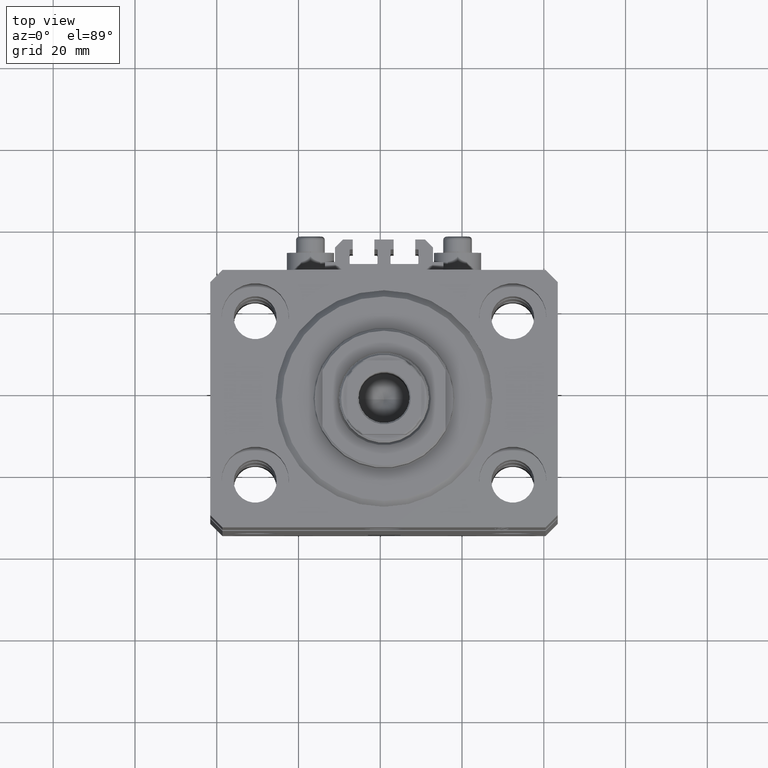
[diagram: clean part render]
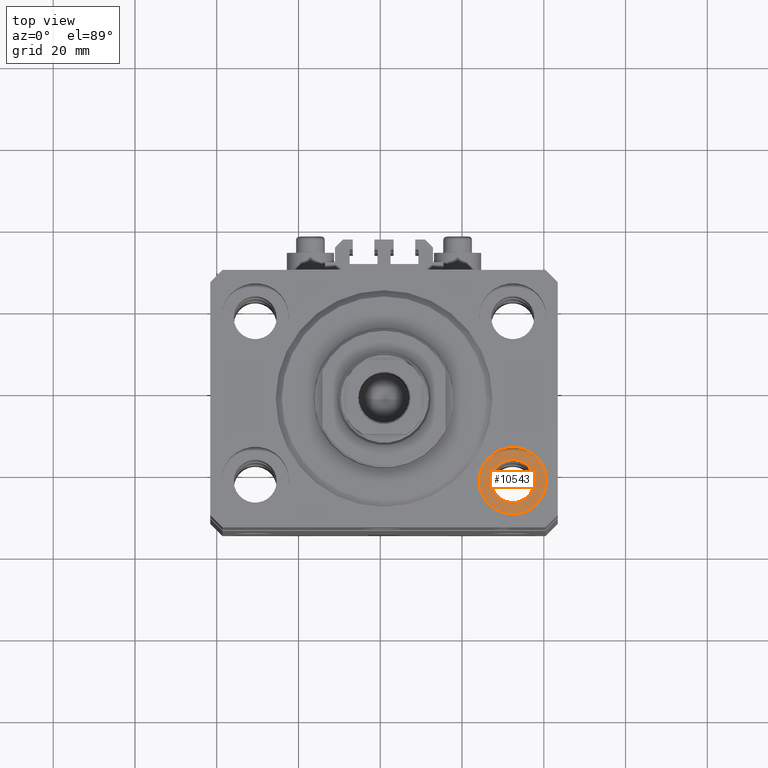
[diagram: same view with one face highlighted and labeled with its STEP entity id]
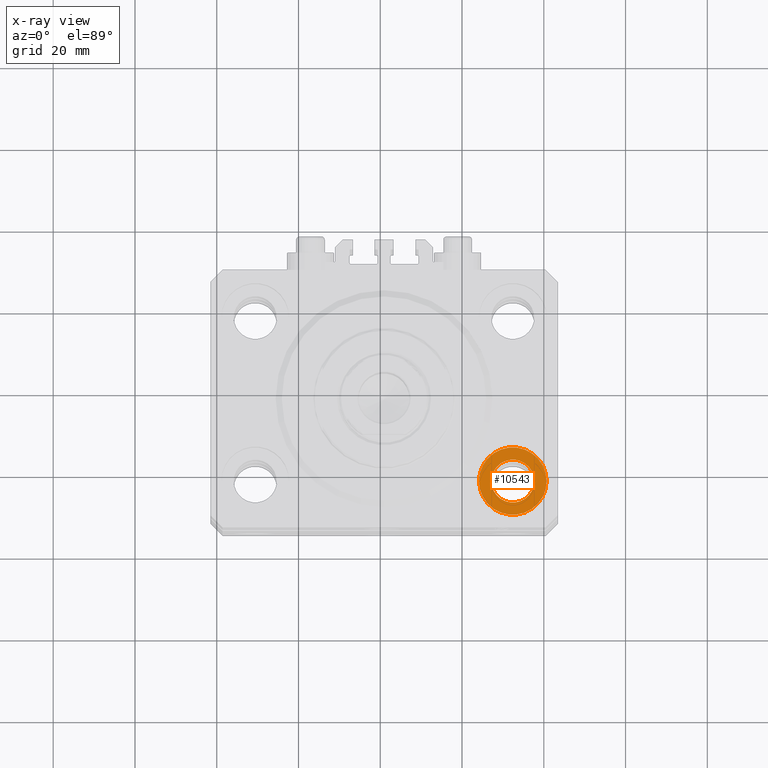
[diagram: x-ray of the same camera — body ghosted, the highlighted face saturated]
A machine part, top view. The second image highlights one B-rep face of the part: STEP entity #10543.
The next image is the same camera in x-ray: the body ghosted, the highlighted face saturated — about 0% of this face is hidden behind the body in this view.
In plain terms, the highlighted planar face has unit normal (0, 0, 1).
Its self-contained STEP definition (entity closure, byte-faithful):
#327 = CARTESIAN_POINT ( 'NONE',  ( 31.50000000000000000, -20.00000000000000000, -11.00000000000000000 ) ) ;
#1299 = FACE_OUTER_BOUND ( 'NONE', #13073, .T. ) ;
#1331 = CARTESIAN_POINT ( 'NONE',  ( 36.75000000000000000, -20.00000000000000000, -11.00000000000000000 ) ) ;
#3503 = EDGE_CURVE ( 'NONE', #40766, #36043, #4810, .T. ) ;
#4810 = CIRCLE ( 'NONE', #6390, 8.249999999999992895 ) ;
#5339 = EDGE_CURVE ( 'NONE', #9625, #29370, #44163, .T. ) ;
#5719 = PLANE ( 'NONE',  #14410 ) ;
#6038 = DIRECTION ( 'NONE',  ( 1.000000000000000000, 0.000000000000000000, 0.000000000000000000 ) ) ;
#6390 = AXIS2_PLACEMENT_3D ( 'NONE', #327, #42366, #7939 ) ;
#7939 = DIRECTION ( 'NONE',  ( 1.000000000000000000, 0.000000000000000000, 0.000000000000000000 ) ) ;
#8761 = DIRECTION ( 'NONE',  ( 0.000000000000000000, 0.000000000000000000, 1.000000000000000000 ) ) ;
#9625 = VERTEX_POINT ( 'NONE', #1331 ) ;
#10543 = ADVANCED_FACE ( 'NONE', ( #24650, #1299 ), #5719, .T. ) ;
#12608 = DIRECTION ( 'NONE',  ( 0.000000000000000000, 0.000000000000000000, 1.000000000000000000 ) ) ;
#12619 = DIRECTION ( 'NONE',  ( 1.000000000000000000, 0.000000000000000000, -0.000000000000000000 ) ) ;
#13073 = EDGE_LOOP ( 'NONE', ( #33396, #39097 ) ) ;
#14410 = AXIS2_PLACEMENT_3D ( 'NONE', #16312, #34754, #12619 ) ;
#16312 = CARTESIAN_POINT ( 'NONE',  ( 31.50000000000000000, -20.00000000000000000, -11.00000000000000000 ) ) ;
#20144 = CIRCLE ( 'NONE', #34272, 8.249999999999992895 ) ;
#22050 = CARTESIAN_POINT ( 'NONE',  ( 31.50000000000000000, -20.00000000000000000, -11.00000000000000000 ) ) ;
#22192 = CARTESIAN_POINT ( 'NONE',  ( 26.25000000000000355, -20.00000000000000000, -11.00000000000000000 ) ) ;
#22523 = CARTESIAN_POINT ( 'NONE',  ( 31.50000000000000000, -20.00000000000000000, -11.00000000000000000 ) ) ;
#24650 = FACE_BOUND ( 'NONE', #25999, .T. ) ;
#25495 = DIRECTION ( 'NONE',  ( 0.000000000000000000, 0.000000000000000000, 1.000000000000000000 ) ) ;
#25999 = EDGE_LOOP ( 'NONE', ( #26493, #26250 ) ) ;
#26202 = AXIS2_PLACEMENT_3D ( 'NONE', #22523, #12608, #34992 ) ;
#26250 = ORIENTED_EDGE ( 'NONE', *, *, #31437, .F. ) ;
#26493 = ORIENTED_EDGE ( 'NONE', *, *, #5339, .F. ) ;
#28345 = CARTESIAN_POINT ( 'NONE',  ( 39.74999999999999289, -20.00000000000000000, -11.00000000000000000 ) ) ;
#29370 = VERTEX_POINT ( 'NONE', #22192 ) ;
#31437 = EDGE_CURVE ( 'NONE', #29370, #9625, #40356, .T. ) ;
#33396 = ORIENTED_EDGE ( 'NONE', *, *, #3503, .T. ) ;
#34272 = AXIS2_PLACEMENT_3D ( 'NONE', #42932, #8761, #6038 ) ;
#34754 = DIRECTION ( 'NONE',  ( 0.000000000000000000, 0.000000000000000000, 1.000000000000000000 ) ) ;
#34938 = CARTESIAN_POINT ( 'NONE',  ( 23.25000000000000355, -20.00000000000000000, -11.00000000000000000 ) ) ;
#34992 = DIRECTION ( 'NONE',  ( 1.000000000000000000, 0.000000000000000000, 0.000000000000000000 ) ) ;
#36043 = VERTEX_POINT ( 'NONE', #34938 ) ;
#37927 = EDGE_CURVE ( 'NONE', #36043, #40766, #20144, .T. ) ;
#39097 = ORIENTED_EDGE ( 'NONE', *, *, #37927, .T. ) ;
#40356 = CIRCLE ( 'NONE', #26202, 5.249999999999997335 ) ;
#40766 = VERTEX_POINT ( 'NONE', #28345 ) ;
#42366 = DIRECTION ( 'NONE',  ( 0.000000000000000000, 0.000000000000000000, 1.000000000000000000 ) ) ;
#42582 = AXIS2_PLACEMENT_3D ( 'NONE', #22050, #25495, #44184 ) ;
#42932 = CARTESIAN_POINT ( 'NONE',  ( 31.50000000000000000, -20.00000000000000000, -11.00000000000000000 ) ) ;
#44163 = CIRCLE ( 'NONE', #42582, 5.249999999999997335 ) ;
#44184 = DIRECTION ( 'NONE',  ( 1.000000000000000000, 0.000000000000000000, 0.000000000000000000 ) ) ;